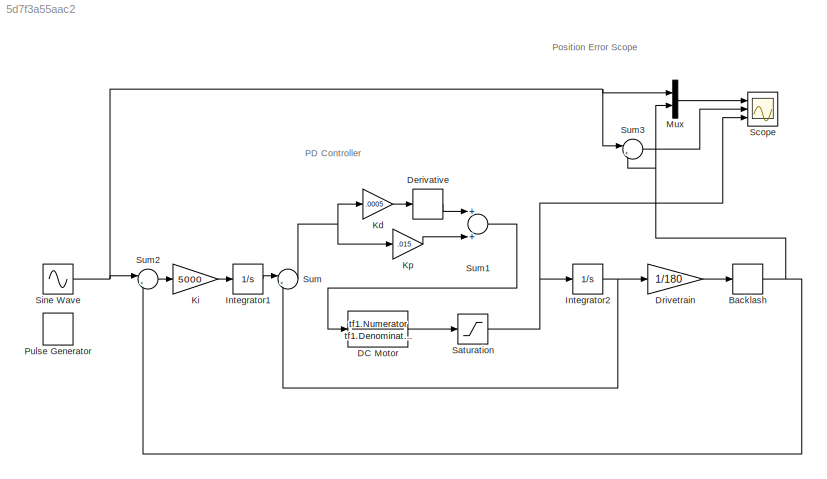
MODEL slx_5d7f3a55aac2
KIND model
CONFIG AbsTol = auto
CONFIG EnableMultiTasking = off
CONFIG FixedStep = auto
CONFIG MaxStep = auto
CONFIG MinStep = auto
CONFIG RelTol = 1e-3
CONFIG SampleTimeConstraint = Unconstrained
CONFIG Solver = VariableStepAuto
CONFIG SolverName = VariableStepAuto
CONFIG StartTime = 0.0
CONFIG StopTime = 10.0
BLOCK [Backlash] Backlash
  BacklashWidth = 0.25
  InputProcessing = Elements as channels (sample based)
BLOCK [TransferFcn] DC Motor
  Denominator = tf1.Denominator
  Numerator = tf1.Numerator
BLOCK [Derivative] Derivative
BLOCK [Gain] Drivetrain
  Gain = 1/180
  OutDataTypeStr = Inherit: Inherit via internal rule
  ParamDataTypeStr = Inherit: Inherit via internal rule
  SaturateOnIntegerOverflow = off
BLOCK [Integrator] Integrator1
  LowerSaturationLimit = -100
  Ports = [1, 1]
  UpperSaturationLimit = 100
BLOCK [Integrator] Integrator2
  Ports = [1, 1]
BLOCK [Gain] Kd
  Gain = .0005
  OutDataTypeStr = Inherit: Inherit via internal rule
  ParamDataTypeStr = Inherit: Inherit via internal rule
  SaturateOnIntegerOverflow = off
BLOCK [Gain] Ki
  Gain = 5000
  OutDataTypeStr = Inherit: Inherit via internal rule
  ParamDataTypeStr = Inherit: Inherit via internal rule
  SaturateOnIntegerOverflow = off
BLOCK [Gain] Kp
  Gain = .015
  OutDataTypeStr = Inherit: Inherit via internal rule
  ParamDataTypeStr = Inherit: Inherit via internal rule
  SaturateOnIntegerOverflow = off
BLOCK [Mux] Mux
  DisplayOption = bar
  Inputs = 2
  Ports = [2, 1]
BLOCK [DiscretePulseGenerator] Pulse Generator
  Period = 10
  PhaseDelay = 0.5
  Ports = [0, 1]
  PulseType = Time based
  PulseWidth = 50
BLOCK [Saturate] Saturation
  InputPortMap = u0
  LowerLimit = -460
  Ports = [1, 1]
  UpperLimit = 460
BLOCK [Scope] Scope
  NumInputPorts = 3
  Ports = [3]
  ScopeSpecificationString = Simulink.scopes.TimeScopeBlockCfg('CurrentConfiguration', extmgr.ConfigurationSet(extmgr.Configuration('Core','General UI',true),extmgr.Configuration('Core','Source UI',true),extmgr.Configuration('Sources','WiredSimulink',true),extmgr.Configuration('Visuals','Time Domain',true,'SerializedDisplays',{struct('MinYLimReal','-2.5','MaxYLimReal','2.5','YLabelReal','','MinYLimMag','0.00000','MaxYLimMag',...<+2758ch>
BLOCK [Sin] Sine Wave
  Amplitude = 2
  Ports = [0, 1]
  SampleTime = 0
BLOCK [Sum] Sum
  IconShape = round
  InputSameDT = off
  Inputs = |+-
  OutDataTypeStr = Inherit: Inherit via internal rule
  Ports = [2, 1]
  SaturateOnIntegerOverflow = off
BLOCK [Sum] Sum1
  InputSameDT = off
  OutDataTypeStr = Inherit: Inherit via internal rule
  Ports = [2, 1]
  SaturateOnIntegerOverflow = off
BLOCK [Sum] Sum2
  IconShape = round
  InputSameDT = off
  Inputs = |+-
  OutDataTypeStr = Inherit: Inherit via internal rule
  Ports = [2, 1]
  SaturateOnIntegerOverflow = off
BLOCK [Sum] Sum3
  IconShape = round
  InputSameDT = off
  Inputs = |+-
  OutDataTypeStr = Inherit: Inherit via internal rule
  Ports = [2, 1]
  SaturateOnIntegerOverflow = off
ANNOTATION (root): PD Controller
ANNOTATION (root): Position Error Scope
NET Backlash:1 -> Mux:2, Sum2:2, Sum3:2
LINE DC Motor:1 -> Saturation:1
LINE Derivative:1 -> Sum1:1
LINE Drivetrain:1 -> Backlash:1
LINE Integrator1:1 -> Sum:1
NET Integrator2:1 -> Drivetrain:1, Sum:2
LINE Kd:1 -> Derivative:1
LINE Ki:1 -> Integrator1:1
LINE Kp:1 -> Sum1:2
LINE Mux:1 -> Scope:1
NET Saturation:1 -> Integrator2:1, Scope:3
NET Sine Wave:1 -> Mux:1, Sum2:1, Sum3:1
LINE Sum1:1 -> DC Motor:1
LINE Sum2:1 -> Ki:1
LINE Sum3:1 -> Scope:2
NET Sum:1 -> Kd:1, Kp:1
note: NET lines group one-source signal fan-out (src -> all destinations, sorted); 1:1 wires keep LINE
